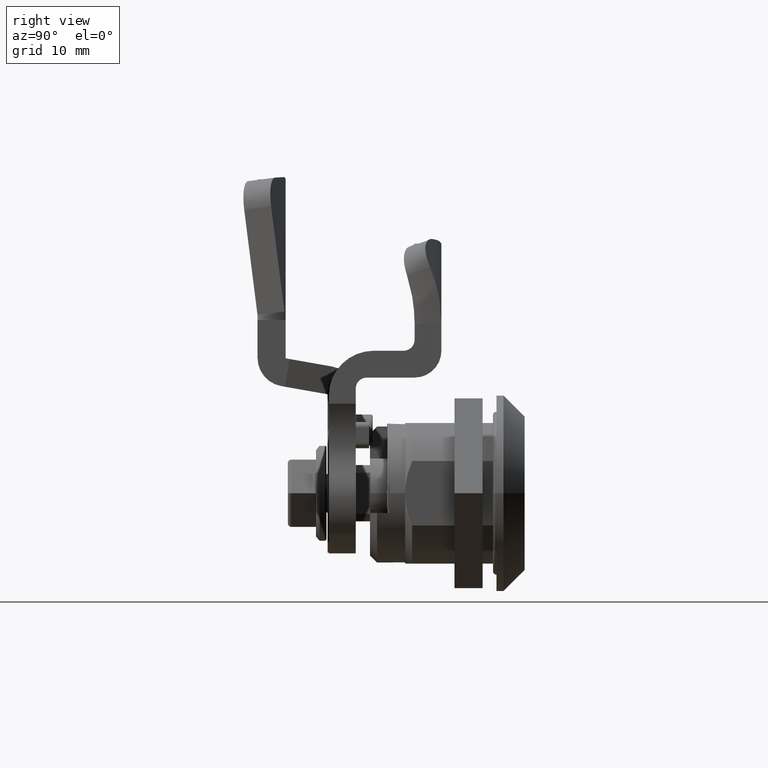
[diagram: clean part render]
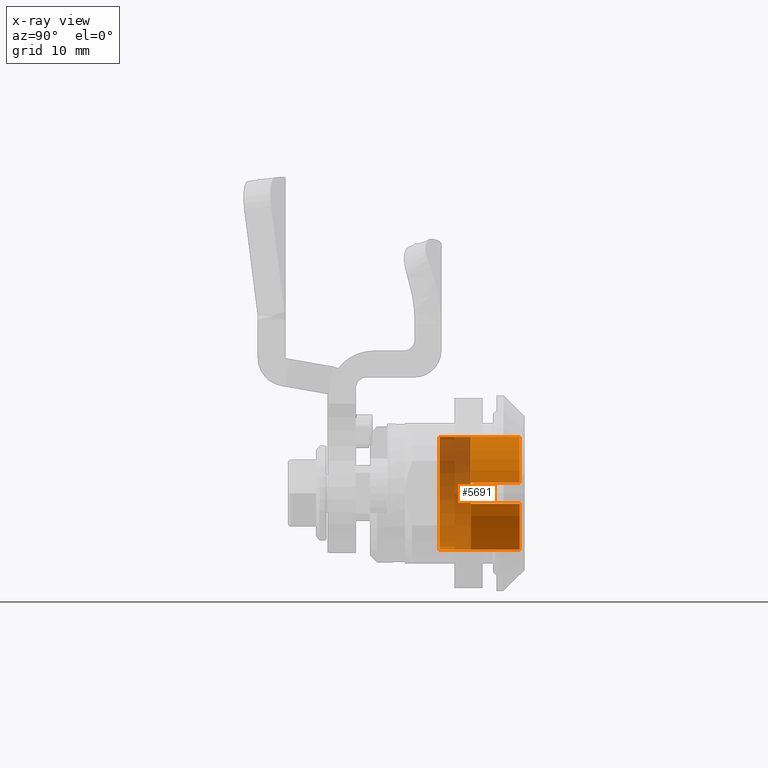
[diagram: x-ray — body ghosted, one internal face saturated and labeled with its STEP entity id]
A machine part, right view, then the same camera in x-ray: the body is ghosted and one INTERNAL B-rep face — a face not visible from any outside direction — is saturated and labeled: STEP entity #5691.
In plain terms, the highlighted cylindrical surface (partial cylindrical patch) has radius 8 mm, axis along (0, 1, 0).
Its self-contained STEP definition (entity closure, byte-faithful):
#17 = VERTEX_POINT ( 'NONE', #11137 ) ;
#135 = VERTEX_POINT ( 'NONE', #8454 ) ;
#440 = VECTOR ( 'NONE', #8235, 39.37007874015748143 ) ;
#565 = VERTEX_POINT ( 'NONE', #11569 ) ;
#785 = VERTEX_POINT ( 'NONE', #3403 ) ;
#792 = ORIENTED_EDGE ( 'NONE', *, *, #13177, .T. ) ;
#989 = LINE ( 'NONE', #12448, #10935 ) ;
#1112 = CARTESIAN_POINT ( 'NONE',  ( 0.000000000000000000, -0.3183385826771653604, 0.3149606299212598381 ) ) ;
#1158 = DIRECTION ( 'NONE',  ( 0.000000000000000000, 1.000000000000000000, 0.000000000000000000 ) ) ;
#1171 = ORIENTED_EDGE ( 'NONE', *, *, #3314, .F. ) ;
#1312 = CIRCLE ( 'NONE', #7360, 0.3149606299212598381 ) ;
#1565 = VECTOR ( 'NONE', #2835, 39.37007874015748143 ) ;
#1603 = DIRECTION ( 'NONE',  ( 0.000000000000000000, 1.000000000000000000, 0.000000000000000000 ) ) ;
#1627 = AXIS2_PLACEMENT_3D ( 'NONE', #3690, #1603, #7806 ) ;
#1685 = DIRECTION ( 'NONE',  ( -0.9822646028438568599, 0.000000000000000000, 0.1875000000000000278 ) ) ;
#1747 = CARTESIAN_POINT ( 'NONE',  ( 0.3093746780610590608, 0.1304803149606299228, -0.05905511811023583107 ) ) ;
#1768 = VERTEX_POINT ( 'NONE', #6082 ) ;
#2152 = EDGE_CURVE ( 'NONE', #785, #1768, #11301, .T. ) ;
#2163 = CARTESIAN_POINT ( 'NONE',  ( 0.3093746780610575065, 0.1304803149606299228, 0.05905511811023504698 ) ) ;
#2430 = AXIS2_PLACEMENT_3D ( 'NONE', #5480, #3440, #7559 ) ;
#2497 = VECTOR ( 'NONE', #7507, 39.37007874015748143 ) ;
#2662 = VECTOR ( 'NONE', #7199, 39.37007874015748143 ) ;
#2835 = DIRECTION ( 'NONE',  ( 0.000000000000000000, 1.000000000000000000, 0.000000000000000000 ) ) ;
#2895 = EDGE_CURVE ( 'NONE', #6184, #6501, #9992, .T. ) ;
#3049 = DIRECTION ( 'NONE',  ( 0.000000000000000000, -1.000000000000000000, 0.000000000000000000 ) ) ;
#3113 = DIRECTION ( 'NONE',  ( 0.9822646028438579702, 0.000000000000000000, -0.1874999999999949762 ) ) ;
#3134 = LINE ( 'NONE', #8524, #2497 ) ;
#3234 = VERTEX_POINT ( 'NONE', #9734 ) ;
#3261 = CARTESIAN_POINT ( 'NONE',  ( -0.3093746780610590608, -0.1451102362204724494, -0.05905511811023583107 ) ) ;
#3314 = EDGE_CURVE ( 'NONE', #3234, #1768, #9194, .T. ) ;
#3403 = CARTESIAN_POINT ( 'NONE',  ( 0.3093746780610590608, 0.1304803149606299228, 0.05905511811023583107 ) ) ;
#3440 = DIRECTION ( 'NONE',  ( 0.000000000000000000, -1.000000000000000000, 0.000000000000000000 ) ) ;
#3690 = CARTESIAN_POINT ( 'NONE',  ( 0.000000000000000000, -0.3183385826771653604, 0.000000000000000000 ) ) ;
#3780 = EDGE_CURVE ( 'NONE', #6501, #565, #11483, .T. ) ;
#4150 = CIRCLE ( 'NONE', #6512, 0.3149606299212598381 ) ;
#4183 = DIRECTION ( 'NONE',  ( 0.000000000000000000, -1.000000000000000000, 0.000000000000000000 ) ) ;
#4586 = CARTESIAN_POINT ( 'NONE',  ( -0.3093746780610590608, 0.1304803149606299228, -0.05905511811023583107 ) ) ;
#4927 = CARTESIAN_POINT ( 'NONE',  ( 0.000000000000000000, -0.1451102362204724494, 0.000000000000000000 ) ) ;
#5078 = ORIENTED_EDGE ( 'NONE', *, *, #12988, .T. ) ;
#5480 = CARTESIAN_POINT ( 'NONE',  ( 0.000000000000000000, 0.1304803149606299228, 0.000000000000000000 ) ) ;
#5483 = EDGE_CURVE ( 'NONE', #785, #7585, #8376, .T. ) ;
#5516 = ORIENTED_EDGE ( 'NONE', *, *, #2895, .T. ) ;
#5691 = ADVANCED_FACE ( 'NONE', ( #8573 ), #12731, .T. ) ;
#5937 = EDGE_CURVE ( 'NONE', #9399, #13224, #989, .T. ) ;
#6082 = CARTESIAN_POINT ( 'NONE',  ( -0.3093746780610590608, 0.1304803149606299228, 0.05905511811023583107 ) ) ;
#6184 = VERTEX_POINT ( 'NONE', #6662 ) ;
#6303 = CARTESIAN_POINT ( 'NONE',  ( 0.000000000000000000, -0.3183385826771653604, 0.000000000000000000 ) ) ;
#6356 = ORIENTED_EDGE ( 'NONE', *, *, #5937, .F. ) ;
#6470 = CIRCLE ( 'NONE', #12547, 0.3149606299212598937 ) ;
#6501 = VERTEX_POINT ( 'NONE', #1112 ) ;
#6512 = AXIS2_PLACEMENT_3D ( 'NONE', #4927, #3049, #1685 ) ;
#6662 = CARTESIAN_POINT ( 'NONE',  ( 0.000000000000000000, -0.3183385826771653604, -0.3149606299212598381 ) ) ;
#6727 = ORIENTED_EDGE ( 'NONE', *, *, #5483, .F. ) ;
#6766 = CARTESIAN_POINT ( 'NONE',  ( 0.000000000000000000, 0.1304803149606299228, 0.000000000000000000 ) ) ;
#7187 = ORIENTED_EDGE ( 'NONE', *, *, #9377, .F. ) ;
#7199 = DIRECTION ( 'NONE',  ( 0.000000000000000000, 1.000000000000000000, 0.000000000000000000 ) ) ;
#7360 = AXIS2_PLACEMENT_3D ( 'NONE', #12470, #8446, #10625 ) ;
#7507 = DIRECTION ( 'NONE',  ( 0.000000000000000000, 1.000000000000000000, 0.000000000000000000 ) ) ;
#7559 = DIRECTION ( 'NONE',  ( -3.229514690172598962E-08, 0.000000000000000000, 0.9999999999999994449 ) ) ;
#7585 = VERTEX_POINT ( 'NONE', #8599 ) ;
#7806 = DIRECTION ( 'NONE',  ( 0.000000000000000000, 0.000000000000000000, -1.000000000000000000 ) ) ;
#7834 = EDGE_CURVE ( 'NONE', #6184, #135, #3134, .T. ) ;
#8200 = CARTESIAN_POINT ( 'NONE',  ( 0.000000000000000000, -0.3183385826771653604, 0.3149606299212598381 ) ) ;
#8235 = DIRECTION ( 'NONE',  ( 0.000000000000000000, -1.000000000000000000, 0.000000000000000000 ) ) ;
#8277 = EDGE_CURVE ( 'NONE', #3234, #13224, #4150, .T. ) ;
#8376 = LINE ( 'NONE', #2163, #440 ) ;
#8422 = CIRCLE ( 'NONE', #8631, 0.3149606299212600047 ) ;
#8446 = DIRECTION ( 'NONE',  ( 0.000000000000000000, 1.000000000000000000, 0.000000000000000000 ) ) ;
#8454 = CARTESIAN_POINT ( 'NONE',  ( 0.000000000000000000, -0.1451102362204724494, -0.3149606299212598381 ) ) ;
#8524 = CARTESIAN_POINT ( 'NONE',  ( 0.000000000000000000, -0.3183385826771653604, -0.3149606299212598381 ) ) ;
#8573 = FACE_OUTER_BOUND ( 'NONE', #12293, .T. ) ;
#8599 = CARTESIAN_POINT ( 'NONE',  ( 0.3093746780610590608, -0.1451102362204724494, 0.05905511811023543556 ) ) ;
#8631 = AXIS2_PLACEMENT_3D ( 'NONE', #6766, #10901, #9885 ) ;
#9038 = ORIENTED_EDGE ( 'NONE', *, *, #7834, .F. ) ;
#9194 = LINE ( 'NONE', #10005, #1565 ) ;
#9262 = DIRECTION ( 'NONE',  ( 0.000000000000000000, 1.000000000000000000, 0.000000000000000000 ) ) ;
#9275 = ORIENTED_EDGE ( 'NONE', *, *, #12665, .T. ) ;
#9377 = EDGE_CURVE ( 'NONE', #17, #9729, #12317, .T. ) ;
#9399 = VERTEX_POINT ( 'NONE', #4586 ) ;
#9729 = VERTEX_POINT ( 'NONE', #1747 ) ;
#9734 = CARTESIAN_POINT ( 'NONE',  ( -0.3093746780610590608, -0.1451102362204724494, 0.05905511811023583107 ) ) ;
#9885 = DIRECTION ( 'NONE',  ( 3.229514690172598962E-08, 0.000000000000000000, -0.9999999999999994449 ) ) ;
#9992 = CIRCLE ( 'NONE', #11946, 0.3149606299212598381 ) ;
#10005 = CARTESIAN_POINT ( 'NONE',  ( -0.3093746780610575065, -0.1451102362204724494, 0.05905511811023504698 ) ) ;
#10008 = VECTOR ( 'NONE', #9262, 39.37007874015748143 ) ;
#10165 = ORIENTED_EDGE ( 'NONE', *, *, #8277, .T. ) ;
#10290 = CARTESIAN_POINT ( 'NONE',  ( 0.3093746780610575065, -0.1451102362204724494, -0.05905511811023504698 ) ) ;
#10481 = DIRECTION ( 'NONE',  ( 0.000000000000000000, 1.000000000000000000, 0.000000000000000000 ) ) ;
#10548 = CARTESIAN_POINT ( 'NONE',  ( 0.000000000000000000, -0.1451102362204724494, 0.000000000000000000 ) ) ;
#10625 = DIRECTION ( 'NONE',  ( 0.000000000000000000, 0.000000000000000000, 1.000000000000000000 ) ) ;
#10808 = ORIENTED_EDGE ( 'NONE', *, *, #3780, .T. ) ;
#10901 = DIRECTION ( 'NONE',  ( 0.000000000000000000, -1.000000000000000000, 0.000000000000000000 ) ) ;
#10935 = VECTOR ( 'NONE', #4183, 39.37007874015748143 ) ;
#11137 = CARTESIAN_POINT ( 'NONE',  ( 0.3093746780610590608, -0.1451102362204724494, -0.05905511811023543556 ) ) ;
#11301 = CIRCLE ( 'NONE', #2430, 0.3149606299212600047 ) ;
#11483 = LINE ( 'NONE', #8200, #2662 ) ;
#11569 = CARTESIAN_POINT ( 'NONE',  ( 0.000000000000000000, -0.1451102362204724494, 0.3149606299212598381 ) ) ;
#11946 = AXIS2_PLACEMENT_3D ( 'NONE', #6303, #1158, #12604 ) ;
#12293 = EDGE_LOOP ( 'NONE', ( #6356, #5078, #7187, #9275, #9038, #5516, #10808, #792, #6727, #13175, #1171, #10165 ) ) ;
#12317 = LINE ( 'NONE', #10290, #10008 ) ;
#12448 = CARTESIAN_POINT ( 'NONE',  ( -0.3093746780610575065, 0.1304803149606299228, -0.05905511811023504698 ) ) ;
#12470 = CARTESIAN_POINT ( 'NONE',  ( 0.000000000000000000, -0.1451102362204724494, 0.000000000000000000 ) ) ;
#12547 = AXIS2_PLACEMENT_3D ( 'NONE', #10548, #10481, #3113 ) ;
#12604 = DIRECTION ( 'NONE',  ( 0.000000000000000000, 0.000000000000000000, -1.000000000000000000 ) ) ;
#12665 = EDGE_CURVE ( 'NONE', #17, #135, #6470, .T. ) ;
#12731 = CYLINDRICAL_SURFACE ( 'NONE', #1627, 0.3149606299212598381 ) ;
#12988 = EDGE_CURVE ( 'NONE', #9399, #9729, #8422, .T. ) ;
#13175 = ORIENTED_EDGE ( 'NONE', *, *, #2152, .T. ) ;
#13177 = EDGE_CURVE ( 'NONE', #565, #7585, #1312, .T. ) ;
#13224 = VERTEX_POINT ( 'NONE', #3261 ) ;